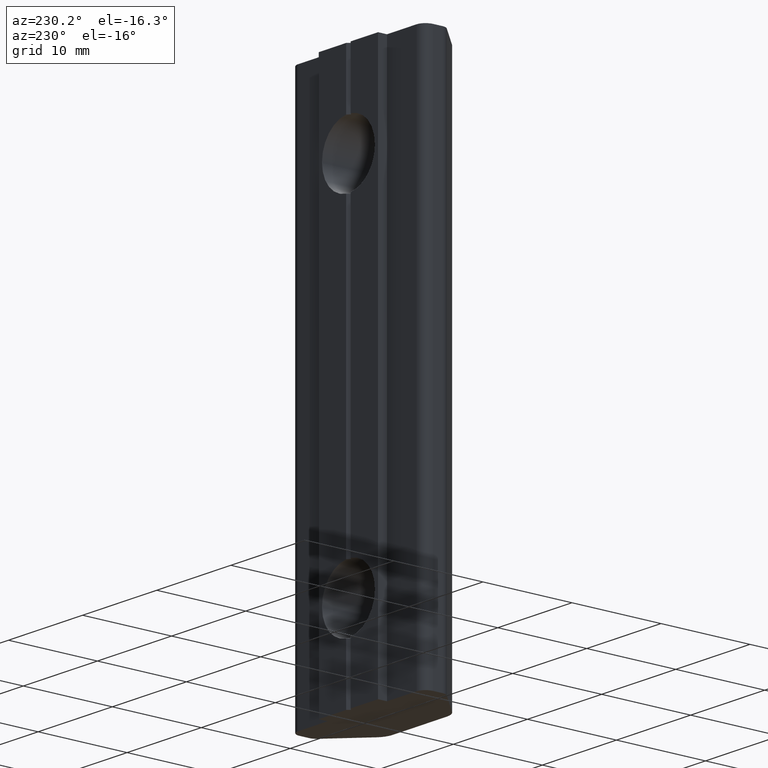
[diagram: clean part render]
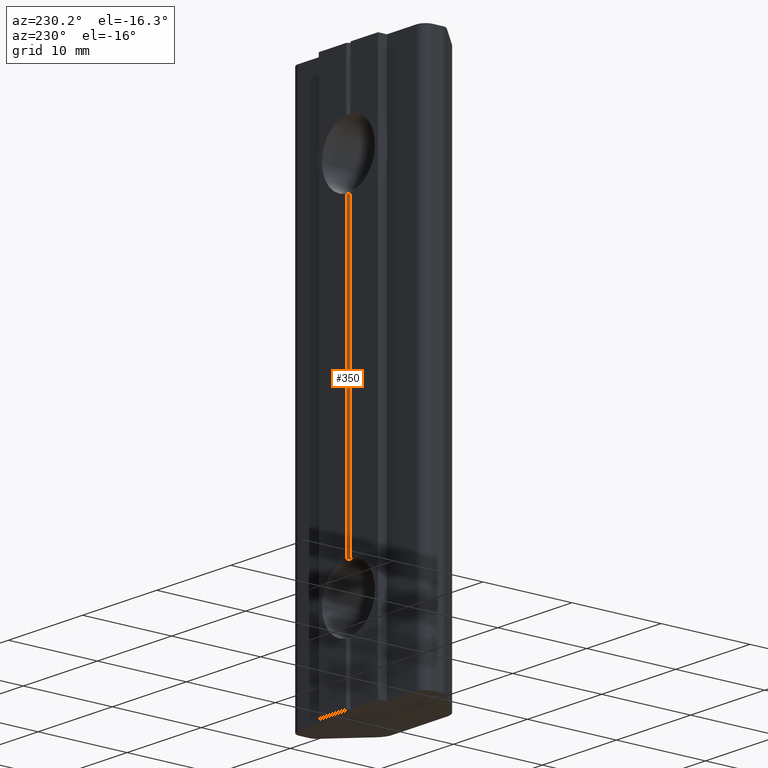
[diagram: same view with one face highlighted and labeled with its STEP entity id]
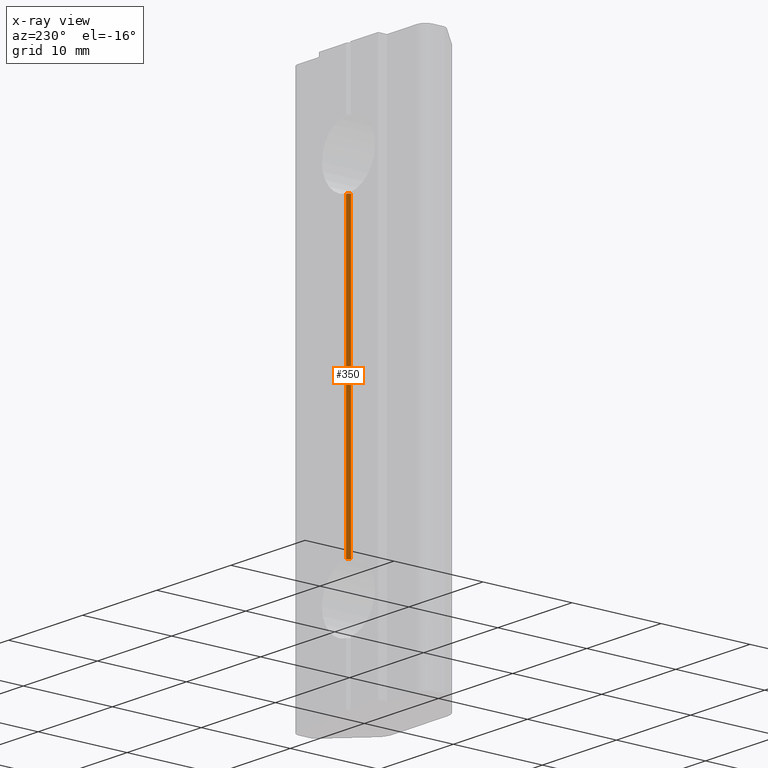
[diagram: x-ray of the same camera — body ghosted, the highlighted face saturated]
A machine part, auxiliary view. The second image highlights one B-rep face of the part: STEP entity #350.
The next image is the same camera in x-ray: the body ghosted, the highlighted face saturated — about 0% of this face is hidden behind the body in this view.
In plain terms, the highlighted planar face has unit normal (-0.7071, 0.7071, 0).
Its self-contained STEP definition (entity closure, byte-faithful):
#70=CARTESIAN_POINT('',(2.884628E-016,1.496296336915752,16.433000000000000));
#71=VERTEX_POINT('',#70);
#72=CARTESIAN_POINT('',(0.300000000000001,1.796296336915752,16.445638031938785));
#73=VERTEX_POINT('',#72);
#74=CARTESIAN_POINT('',(1.995401E-015,1.496296336915754,20.0));
#75=DIRECTION('',(0.707106781186546,-0.707106781186549,0.0));
#76=DIRECTION('',(0.707106781186549,0.707106781186546,0.0));
#77=AXIS2_PLACEMENT_3D('',#74,#75,#76);
#78=ELLIPSE('',#77,5.044499776984827,3.567000000000001);
#79=EDGE_CURVE('',#71,#73,#78,.T.);
#193=CARTESIAN_POINT('',(2.884628E-016,1.496296336915752,-16.433000000000000));
#194=VERTEX_POINT('',#193);
#202=CARTESIAN_POINT('',(0.300000000000001,1.796296336915752,-16.445638031938785));
#203=VERTEX_POINT('',#202);
#204=CARTESIAN_POINT('',(1.995401E-015,1.496296336915754,-20.0));
#205=DIRECTION('',(0.707106781186546,-0.707106781186549,0.0));
#206=DIRECTION('',(0.707106781186549,0.707106781186546,0.0));
#207=AXIS2_PLACEMENT_3D('',#204,#205,#206);
#208=ELLIPSE('',#207,5.044499776984827,3.567000000000001);
#209=EDGE_CURVE('',#203,#194,#208,.T.);
#277=CARTESIAN_POINT('',(0.300000000000001,1.796296336915752,16.445638031938785));
#278=DIRECTION('',(0.0,0.0,-1.0));
#279=VECTOR('',#278,32.891276063877569);
#280=LINE('',#277,#279);
#281=EDGE_CURVE('',#73,#203,#280,.T.);
#334=CARTESIAN_POINT('',(2.884628E-016,1.496296336915752,0.0));
#335=DIRECTION('',(-0.707106781186546,0.707106781186549,0.0));
#336=DIRECTION('',(0.0,0.0,1.0));
#337=AXIS2_PLACEMENT_3D('',#334,#335,#336);
#338=PLANE('',#337);
#339=ORIENTED_EDGE('',*,*,#79,.T.);
#340=ORIENTED_EDGE('',*,*,#281,.T.);
#341=ORIENTED_EDGE('',*,*,#209,.T.);
#342=CARTESIAN_POINT('',(2.884628E-016,1.496296336915752,16.433000000000000));
#343=DIRECTION('',(0.0,0.0,-1.0));
#344=VECTOR('',#343,32.866000000000000);
#345=LINE('',#342,#344);
#346=EDGE_CURVE('',#71,#194,#345,.T.);
#347=ORIENTED_EDGE('',*,*,#346,.F.);
#348=EDGE_LOOP('',(#339,#340,#341,#347));
#349=FACE_OUTER_BOUND('',#348,.T.);
#350=ADVANCED_FACE('',(#349),#338,.T.);